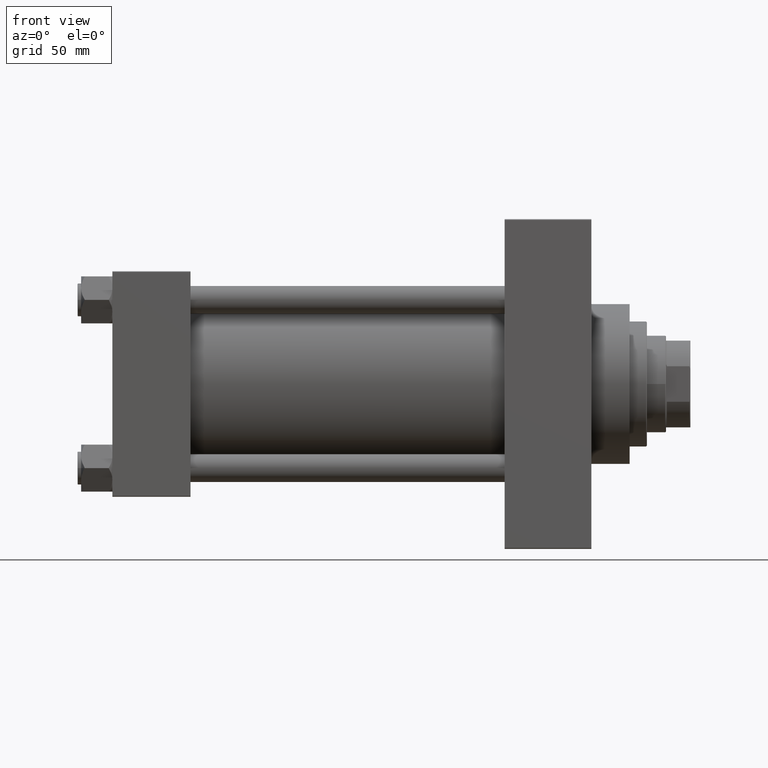
[diagram: clean part render]
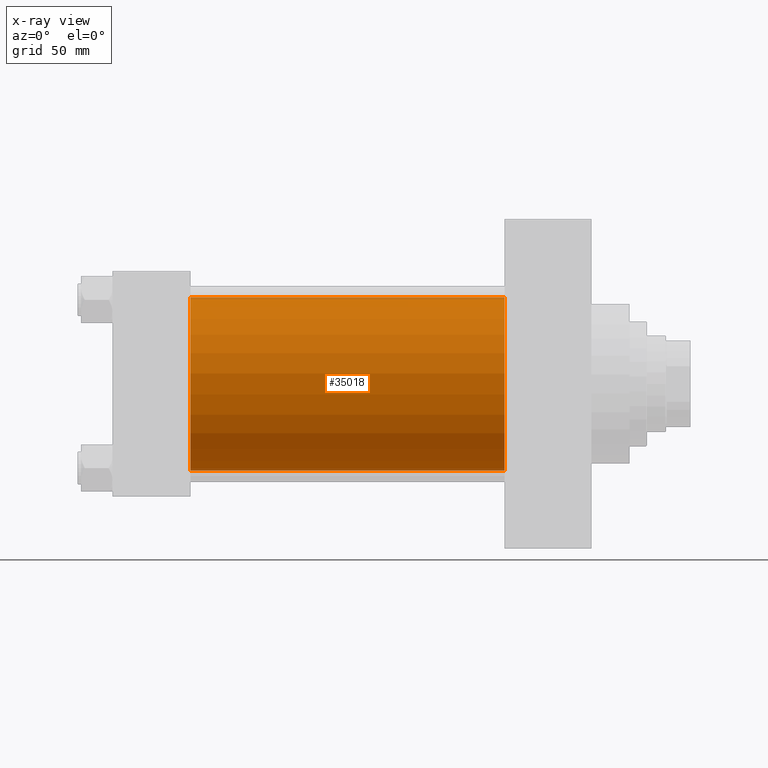
[diagram: x-ray — body ghosted, one internal face saturated and labeled with its STEP entity id]
A machine part, front view, then the same camera in x-ray: the body is ghosted and one INTERNAL B-rep face — a face not visible from any outside direction — is saturated and labeled: STEP entity #35018.
In plain terms, the highlighted cylindrical surface (partial cylindrical patch) has radius 50 mm, axis along (-1, -0, -0).
Its self-contained STEP definition (entity closure, byte-faithful):
#485 = AXIS2_PLACEMENT_3D ( 'NONE', #29417, #44150, #44382 ) ;
#1090 = DIRECTION ( 'NONE',  ( 0.000000000000000000, 0.000000000000000000, -1.000000000000000000 ) ) ;
#2273 = CARTESIAN_POINT ( 'NONE',  ( 45.00000000000000000, -2.602085213965210642E-15, 0.000000000000000000 ) ) ;
#2732 = ORIENTED_EDGE ( 'NONE', *, *, #27180, .F. ) ;
#4041 = VERTEX_POINT ( 'NONE', #37118 ) ;
#7538 = CARTESIAN_POINT ( 'NONE',  ( 45.00000000000000000, 3.521148781771555838E-15, -50.00000000000000000 ) ) ;
#10239 = LINE ( 'NONE', #13872, #46198 ) ;
#13872 = CARTESIAN_POINT ( 'NONE',  ( 225.9999999999999716, 3.521148781771555838E-15, -50.00000000000000000 ) ) ;
#14670 = FACE_OUTER_BOUND ( 'NONE', #40999, .T. ) ;
#14711 = EDGE_CURVE ( 'NONE', #40874, #4041, #37734, .T. ) ;
#14882 = EDGE_CURVE ( 'NONE', #4041, #22115, #10239, .T. ) ;
#18158 = VECTOR ( 'NONE', #30411, 1000.000000000000000 ) ;
#19594 = VERTEX_POINT ( 'NONE', #30983 ) ;
#19664 = CARTESIAN_POINT ( 'NONE',  ( 225.9999999999999716, -2.602085213965210642E-15, 0.000000000000000000 ) ) ;
#20929 = CARTESIAN_POINT ( 'NONE',  ( 225.9999999999999716, -2.602085213965210642E-15, 50.00000000000000000 ) ) ;
#21088 = DIRECTION ( 'NONE',  ( 0.000000000000000000, 0.000000000000000000, -1.000000000000000000 ) ) ;
#22115 = VERTEX_POINT ( 'NONE', #7538 ) ;
#22672 = CARTESIAN_POINT ( 'NONE',  ( 225.9999999999999716, -2.602085213965210642E-15, 50.00000000000000000 ) ) ;
#26174 = ORIENTED_EDGE ( 'NONE', *, *, #33055, .F. ) ;
#27180 = EDGE_CURVE ( 'NONE', #19594, #22115, #28804, .T. ) ;
#27401 = DIRECTION ( 'NONE',  ( 1.000000000000000000, 0.000000000000000000, 0.000000000000000000 ) ) ;
#28608 = DIRECTION ( 'NONE',  ( -1.000000000000000000, -0.000000000000000000, -0.000000000000000000 ) ) ;
#28804 = CIRCLE ( 'NONE', #36497, 50.00000000000000000 ) ;
#29417 = CARTESIAN_POINT ( 'NONE',  ( 225.9999999999999716, -2.602085213965210642E-15, 0.000000000000000000 ) ) ;
#29934 = LINE ( 'NONE', #22672, #18158 ) ;
#30411 = DIRECTION ( 'NONE',  ( -1.000000000000000000, -0.000000000000000000, -0.000000000000000000 ) ) ;
#30462 = ORIENTED_EDGE ( 'NONE', *, *, #14882, .T. ) ;
#30797 = AXIS2_PLACEMENT_3D ( 'NONE', #19664, #41429, #1090 ) ;
#30983 = CARTESIAN_POINT ( 'NONE',  ( 45.00000000000000000, -2.602085213965210642E-15, 50.00000000000000000 ) ) ;
#33055 = EDGE_CURVE ( 'NONE', #40874, #19594, #29934, .T. ) ;
#35018 = ADVANCED_FACE ( 'NONE', ( #14670 ), #36904, .F. ) ;
#36497 = AXIS2_PLACEMENT_3D ( 'NONE', #2273, #27401, #21088 ) ;
#36904 = CYLINDRICAL_SURFACE ( 'NONE', #485, 50.00000000000000000 ) ;
#37118 = CARTESIAN_POINT ( 'NONE',  ( 225.9999999999999716, 3.521148781771555838E-15, -50.00000000000000000 ) ) ;
#37324 = ORIENTED_EDGE ( 'NONE', *, *, #14711, .T. ) ;
#37734 = CIRCLE ( 'NONE', #30797, 50.00000000000000000 ) ;
#40874 = VERTEX_POINT ( 'NONE', #20929 ) ;
#40999 = EDGE_LOOP ( 'NONE', ( #37324, #30462, #2732, #26174 ) ) ;
#41429 = DIRECTION ( 'NONE',  ( 1.000000000000000000, 0.000000000000000000, 0.000000000000000000 ) ) ;
#44150 = DIRECTION ( 'NONE',  ( -1.000000000000000000, -0.000000000000000000, -0.000000000000000000 ) ) ;
#44382 = DIRECTION ( 'NONE',  ( 0.000000000000000000, 0.000000000000000000, 1.000000000000000000 ) ) ;
#46198 = VECTOR ( 'NONE', #28608, 1000.000000000000000 ) ;